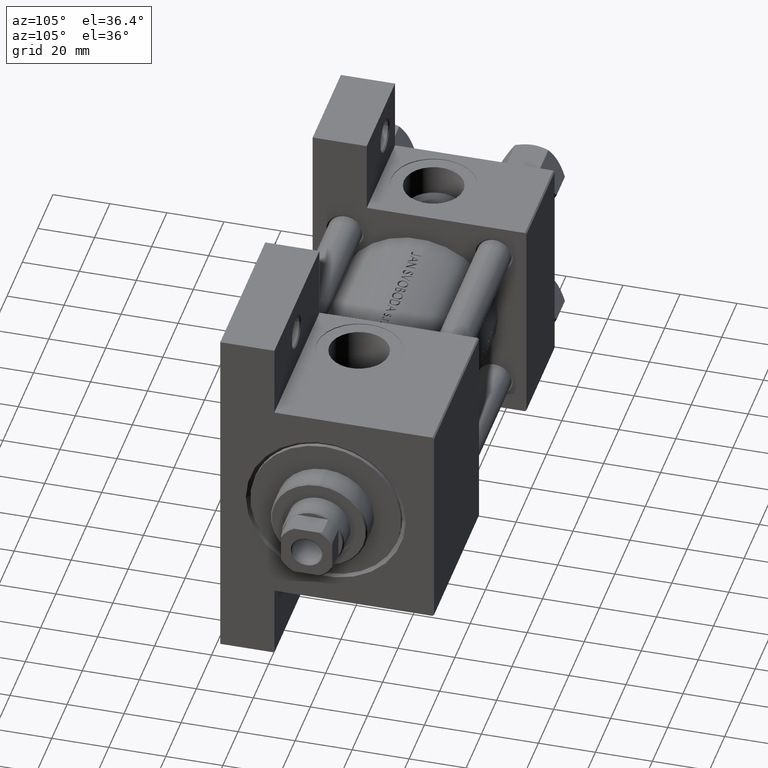
[diagram: clean part render]
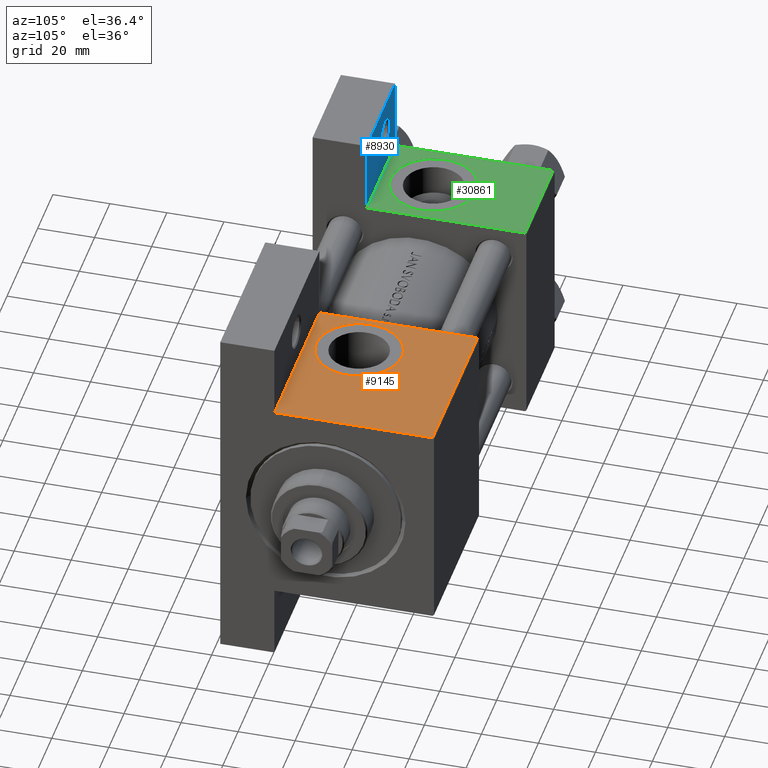
[diagram: same view with three faces highlighted in distinct colors, each labeled with its STEP entity id]
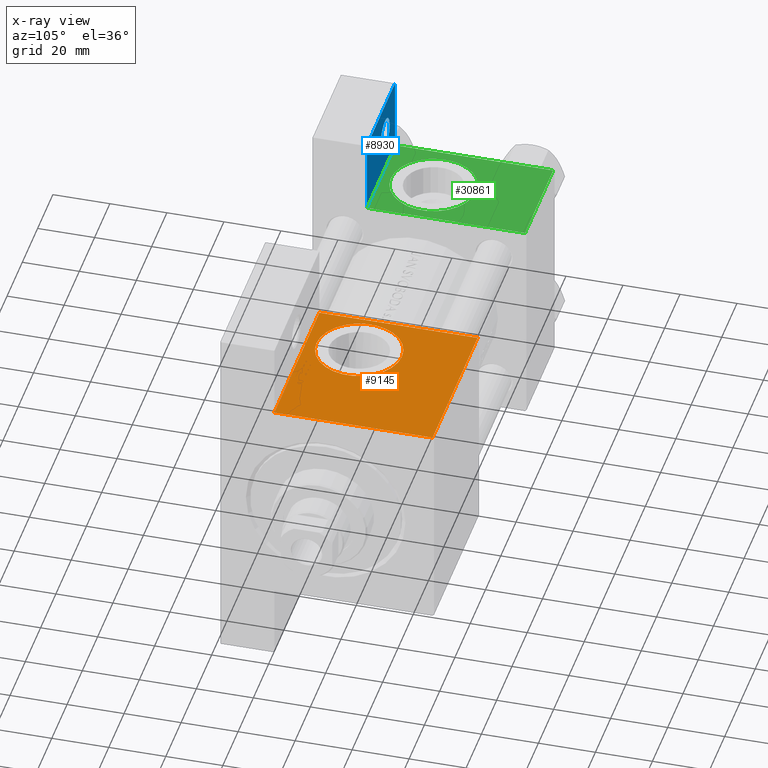
[diagram: x-ray of the same camera — body ghosted, the three highlighted faces saturated]
A machine part, auxiliary view with three faces highlighted in distinct colors.
The next image is the same camera in x-ray (body ghosted, the three faces saturated) — at least one of them is partly hidden behind the body in this view.
Their STEP definitions:

[orange] entity #9145 — the highlighted planar face has unit normal (0, -0, -1).
#79 = CARTESIAN_POINT ( 'NONE',  ( 99.00000000000000000, -37.50000000000000000, -18.50000000000000000 ) ) ;
#541 = VERTEX_POINT ( 'NONE', #28845 ) ;
#707 = EDGE_LOOP ( 'NONE', ( #40484, #48852, #17959, #38972 ) ) ;
#974 = DIRECTION ( 'NONE',  ( 0.000000000000000000, -9.251858538542972814E-17, -1.000000000000000000 ) ) ;
#1054 = FACE_BOUND ( 'NONE', #17347, .T. ) ;
#1600 = DIRECTION ( 'NONE',  ( 0.000000000000000000, 0.000000000000000000, -1.000000000000000000 ) ) ;
#5345 = CARTESIAN_POINT ( 'NONE',  ( 116.0000000000000000, -37.50000000000000000, 3.469446951953615767E-15 ) ) ;
#5912 = LINE ( 'NONE', #47530, #30388 ) ;
#6200 = VERTEX_POINT ( 'NONE', #22707 ) ;
#7792 = LINE ( 'NONE', #79, #48524 ) ;
#7863 = LINE ( 'NONE', #23551, #41427 ) ;
#8861 = VECTOR ( 'NONE', #974, 1000.000000000000000 ) ;
#9145 = ADVANCED_FACE ( 'NONE', ( #1054, #42425 ), #12272, .F. ) ;
#11149 = DIRECTION ( 'NONE',  ( 0.000000000000000000, -1.000000000000000000, -8.673617379884036705E-17 ) ) ;
#11611 = CARTESIAN_POINT ( 'NONE',  ( 158.0000000000000000, -37.50000000000000711, -18.50000000000000355 ) ) ;
#12272 = PLANE ( 'NONE',  #30792 ) ;
#12513 = DIRECTION ( 'NONE',  ( 0.000000000000000000, 9.251858538542972814E-17, 1.000000000000000000 ) ) ;
#13086 = ORIENTED_EDGE ( 'NONE', *, *, #46930, .F. ) ;
#13108 = VERTEX_POINT ( 'NONE', #46852 ) ;
#17029 = EDGE_CURVE ( 'NONE', #22029, #28580, #7792, .T. ) ;
#17347 = EDGE_LOOP ( 'NONE', ( #48691, #13086 ) ) ;
#17959 = ORIENTED_EDGE ( 'NONE', *, *, #18772, .T. ) ;
#18134 = CARTESIAN_POINT ( 'NONE',  ( 116.0000000000000000, -37.50000000000000000, 3.469446951953615767E-15 ) ) ;
#18772 = EDGE_CURVE ( 'NONE', #541, #22029, #7863, .T. ) ;
#19408 = CARTESIAN_POINT ( 'NONE',  ( 158.0000000000000000, -37.50000000000000000, 37.49999999999997868 ) ) ;
#19797 = DIRECTION ( 'NONE',  ( 0.000000000000000000, -9.251858538542972814E-17, -1.000000000000000000 ) ) ;
#22029 = VERTEX_POINT ( 'NONE', #23767 ) ;
#22707 = CARTESIAN_POINT ( 'NONE',  ( 116.0000000000000000, -37.50000000000000000, 15.00000000000001421 ) ) ;
#23551 = CARTESIAN_POINT ( 'NONE',  ( 99.00000000000000000, -37.50000000000000000, 37.49999999999997868 ) ) ;
#23767 = CARTESIAN_POINT ( 'NONE',  ( 99.00000000000000000, -37.50000000000000000, -18.50000000000000000 ) ) ;
#24665 = EDGE_CURVE ( 'NONE', #13108, #541, #5912, .T. ) ;
#26354 = VERTEX_POINT ( 'NONE', #39957 ) ;
#28580 = VERTEX_POINT ( 'NONE', #11611 ) ;
#28845 = CARTESIAN_POINT ( 'NONE',  ( 99.00000000000000000, -37.50000000000000000, 36.99999999999995026 ) ) ;
#30388 = VECTOR ( 'NONE', #39565, 1000.000000000000000 ) ;
#30792 = AXIS2_PLACEMENT_3D ( 'NONE', #35449, #46407, #12513 ) ;
#31127 = LINE ( 'NONE', #19408, #8861 ) ;
#33580 = DIRECTION ( 'NONE',  ( 0.000000000000000000, 0.000000000000000000, -1.000000000000000000 ) ) ;
#34599 = AXIS2_PLACEMENT_3D ( 'NONE', #18134, #11149, #33580 ) ;
#34901 = EDGE_CURVE ( 'NONE', #13108, #28580, #31127, .T. ) ;
#35449 = CARTESIAN_POINT ( 'NONE',  ( 158.0000000000000000, -37.50000000000000000, 37.49999999999997868 ) ) ;
#35751 = DIRECTION ( 'NONE',  ( 0.000000000000000000, -1.000000000000000000, -8.673617379884036705E-17 ) ) ;
#38531 = AXIS2_PLACEMENT_3D ( 'NONE', #5345, #35751, #1600 ) ;
#38972 = ORIENTED_EDGE ( 'NONE', *, *, #17029, .T. ) ;
#39565 = DIRECTION ( 'NONE',  ( -1.000000000000000000, 0.000000000000000000, 0.000000000000000000 ) ) ;
#39957 = CARTESIAN_POINT ( 'NONE',  ( 116.0000000000000000, -37.50000000000000000, -15.00000000000000888 ) ) ;
#40484 = ORIENTED_EDGE ( 'NONE', *, *, #34901, .F. ) ;
#41427 = VECTOR ( 'NONE', #19797, 1000.000000000000000 ) ;
#42425 = FACE_OUTER_BOUND ( 'NONE', #707, .T. ) ;
#44188 = CIRCLE ( 'NONE', #34599, 15.00000000000001243 ) ;
#44867 = EDGE_CURVE ( 'NONE', #26354, #6200, #46486, .T. ) ;
#46407 = DIRECTION ( 'NONE',  ( 0.000000000000000000, 1.000000000000000000, -9.251858538542972814E-17 ) ) ;
#46486 = CIRCLE ( 'NONE', #38531, 15.00000000000001243 ) ;
#46852 = CARTESIAN_POINT ( 'NONE',  ( 158.0000000000000000, -37.50000000000000000, 36.99999999999995026 ) ) ;
#46930 = EDGE_CURVE ( 'NONE', #6200, #26354, #44188, .T. ) ;
#47530 = CARTESIAN_POINT ( 'NONE',  ( 158.0000000000000000, -37.50000000000000000, 36.99999999999995026 ) ) ;
#48524 = VECTOR ( 'NONE', #48909, 1000.000000000000000 ) ;
#48691 = ORIENTED_EDGE ( 'NONE', *, *, #44867, .F. ) ;
#48852 = ORIENTED_EDGE ( 'NONE', *, *, #24665, .T. ) ;
#48909 = DIRECTION ( 'NONE',  ( 1.000000000000000000, -3.528251137579948571E-16, 0.000000000000000000 ) ) ;

[blue] entity #8930 — the highlighted planar face has unit normal (0, -1, 0).
#1303 = ORIENTED_EDGE ( 'NONE', *, *, #38567, .T. ) ;
#1433 = LINE ( 'NONE', #8669, #42911 ) ;
#1846 = VECTOR ( 'NONE', #25785, 1000.000000000000000 ) ;
#2085 = FACE_OUTER_BOUND ( 'NONE', #42355, .T. ) ;
#2112 = AXIS2_PLACEMENT_3D ( 'NONE', #21274, #5583, #25261 ) ;
#3110 = VERTEX_POINT ( 'NONE', #46531 ) ;
#4524 = ORIENTED_EDGE ( 'NONE', *, *, #20206, .T. ) ;
#4708 = ORIENTED_EDGE ( 'NONE', *, *, #32098, .T. ) ;
#5275 = CARTESIAN_POINT ( 'NONE',  ( 12.99999999999999822, -51.00000000000001421, -18.50000000000000000 ) ) ;
#5526 = CARTESIAN_POINT ( 'NONE',  ( 12.99999999999999822, -51.00000000000001421, -18.50000000000000000 ) ) ;
#5583 = DIRECTION ( 'NONE',  ( 0.000000000000000000, 0.000000000000000000, -1.000000000000000000 ) ) ;
#5773 = DIRECTION ( 'NONE',  ( -1.000000000000000000, 0.000000000000000000, 0.000000000000000000 ) ) ;
#6940 = CARTESIAN_POINT ( 'NONE',  ( 7.000499999999975742, -51.00000000000001421, -18.50000000000000000 ) ) ;
#7584 = LINE ( 'NONE', #34908, #21601 ) ;
#8368 = EDGE_CURVE ( 'NONE', #24824, #9688, #20390, .T. ) ;
#8669 = CARTESIAN_POINT ( 'NONE',  ( 3.977209754999747208E-16, -63.50000000000000000, -18.50000000000000355 ) ) ;
#8930 = ADVANCED_FACE ( 'NONE', ( #21512, #2085 ), #13066, .F. ) ;
#9688 = VERTEX_POINT ( 'NONE', #6940 ) ;
#12241 = DIRECTION ( 'NONE',  ( -1.000000000000000000, 0.000000000000000000, 0.000000000000000000 ) ) ;
#13066 = PLANE ( 'NONE',  #2112 ) ;
#13151 = DIRECTION ( 'NONE',  ( 1.000000000000000000, 0.000000000000000000, 0.000000000000000000 ) ) ;
#13301 = CARTESIAN_POINT ( 'NONE',  ( 37.00000000000000000, -37.50000000000000000, -18.50000000000000355 ) ) ;
#13487 = VERTEX_POINT ( 'NONE', #17877 ) ;
#14999 = EDGE_CURVE ( 'NONE', #13487, #3110, #1433, .T. ) ;
#15196 = DIRECTION ( 'NONE',  ( -0.000000000000000000, 1.000000000000000000, 0.000000000000000000 ) ) ;
#16283 = VERTEX_POINT ( 'NONE', #43439 ) ;
#17877 = CARTESIAN_POINT ( 'NONE',  ( 3.977209754999747208E-16, -63.50000000000000000, -18.50000000000000355 ) ) ;
#18686 = CARTESIAN_POINT ( 'NONE',  ( 37.00000000000000000, -63.49999999999998579, -18.50000000000000355 ) ) ;
#20206 = EDGE_CURVE ( 'NONE', #38914, #16283, #7584, .T. ) ;
#20390 = CIRCLE ( 'NONE', #22790, 5.999500000000022482 ) ;
#20973 = DIRECTION ( 'NONE',  ( 0.000000000000000000, 0.000000000000000000, -1.000000000000000000 ) ) ;
#21274 = CARTESIAN_POINT ( 'NONE',  ( 0.000000000000000000, 0.000000000000000000, -18.50000000000000000 ) ) ;
#21512 = FACE_BOUND ( 'NONE', #44623, .T. ) ;
#21601 = VECTOR ( 'NONE', #12241, 1000.000000000000000 ) ;
#22790 = AXIS2_PLACEMENT_3D ( 'NONE', #5275, #28194, #5773 ) ;
#24642 = ORIENTED_EDGE ( 'NONE', *, *, #43417, .T. ) ;
#24824 = VERTEX_POINT ( 'NONE', #46791 ) ;
#24984 = ORIENTED_EDGE ( 'NONE', *, *, #14999, .T. ) ;
#25261 = DIRECTION ( 'NONE',  ( -1.000000000000000000, 0.000000000000000000, -0.000000000000000000 ) ) ;
#25785 = DIRECTION ( 'NONE',  ( 4.278042683914906889E-17, -1.000000000000000000, 0.000000000000000000 ) ) ;
#26610 = AXIS2_PLACEMENT_3D ( 'NONE', #5526, #20973, #27943 ) ;
#27943 = DIRECTION ( 'NONE',  ( -1.000000000000000000, 0.000000000000000000, 0.000000000000000000 ) ) ;
#28194 = DIRECTION ( 'NONE',  ( 0.000000000000000000, 0.000000000000000000, -1.000000000000000000 ) ) ;
#29775 = LINE ( 'NONE', #41239, #1846 ) ;
#29868 = ORIENTED_EDGE ( 'NONE', *, *, #8368, .T. ) ;
#31268 = VECTOR ( 'NONE', #15196, 1000.000000000000000 ) ;
#32098 = EDGE_CURVE ( 'NONE', #9688, #24824, #47321, .T. ) ;
#34908 = CARTESIAN_POINT ( 'NONE',  ( -7.145701223179000102E-16, -37.50000000000001421, -18.49999999999999645 ) ) ;
#38567 = EDGE_CURVE ( 'NONE', #3110, #38914, #41362, .T. ) ;
#38914 = VERTEX_POINT ( 'NONE', #13301 ) ;
#41239 = CARTESIAN_POINT ( 'NONE',  ( 3.977209754999744250E-16, -63.49999999999998579, -18.50000000000000355 ) ) ;
#41362 = LINE ( 'NONE', #18686, #31268 ) ;
#42355 = EDGE_LOOP ( 'NONE', ( #1303, #4524, #24642, #24984 ) ) ;
#42911 = VECTOR ( 'NONE', #13151, 1000.000000000000000 ) ;
#43417 = EDGE_CURVE ( 'NONE', #16283, #13487, #29775, .T. ) ;
#43439 = CARTESIAN_POINT ( 'NONE',  ( -7.145701223179004046E-16, -37.50000000000000711, -18.50000000000000355 ) ) ;
#44623 = EDGE_LOOP ( 'NONE', ( #29868, #4708 ) ) ;
#46531 = CARTESIAN_POINT ( 'NONE',  ( 37.00000000000000000, -63.50000000000000000, -18.50000000000000355 ) ) ;
#46791 = CARTESIAN_POINT ( 'NONE',  ( 18.99950000000001893, -51.00000000000001421, -18.50000000000000000 ) ) ;
#47321 = CIRCLE ( 'NONE', #26610, 5.999500000000022482 ) ;

[green] entity #30861 — the highlighted planar face has unit normal (0, 0, -1).
#678 = ORIENTED_EDGE ( 'NONE', *, *, #38681, .T. ) ;
#3277 = VECTOR ( 'NONE', #39370, 1000.000000000000000 ) ;
#4468 = ORIENTED_EDGE ( 'NONE', *, *, #28500, .T. ) ;
#5883 = AXIS2_PLACEMENT_3D ( 'NONE', #30527, #23282, #26539 ) ;
#6584 = VECTOR ( 'NONE', #36588, 1000.000000000000000 ) ;
#7564 = DIRECTION ( 'NONE',  ( 0.000000000000000000, 0.000000000000000000, -1.000000000000000000 ) ) ;
#7584 = LINE ( 'NONE', #34908, #21601 ) ;
#8080 = VERTEX_POINT ( 'NONE', #29400 ) ;
#8089 = PLANE ( 'NONE',  #5883 ) ;
#8890 = DIRECTION ( 'NONE',  ( 0.000000000000000000, 0.000000000000000000, -1.000000000000000000 ) ) ;
#9558 = CIRCLE ( 'NONE', #36627, 15.00000000000000178 ) ;
#9749 = ORIENTED_EDGE ( 'NONE', *, *, #14144, .F. ) ;
#9931 = LINE ( 'NONE', #17165, #6584 ) ;
#12241 = DIRECTION ( 'NONE',  ( -1.000000000000000000, 0.000000000000000000, 0.000000000000000000 ) ) ;
#13301 = CARTESIAN_POINT ( 'NONE',  ( 37.00000000000000000, -37.50000000000000000, -18.50000000000000355 ) ) ;
#13767 = VERTEX_POINT ( 'NONE', #23303 ) ;
#14144 = EDGE_CURVE ( 'NONE', #23844, #8080, #16600, .T. ) ;
#15009 = ORIENTED_EDGE ( 'NONE', *, *, #20206, .F. ) ;
#16054 = FACE_BOUND ( 'NONE', #31961, .T. ) ;
#16283 = VERTEX_POINT ( 'NONE', #43439 ) ;
#16600 = CIRCLE ( 'NONE', #39697, 15.00000000000000178 ) ;
#16716 = ORIENTED_EDGE ( 'NONE', *, *, #23921, .F. ) ;
#16843 = EDGE_CURVE ( 'NONE', #8080, #23844, #9558, .T. ) ;
#16928 = LINE ( 'NONE', #32135, #3277 ) ;
#17165 = CARTESIAN_POINT ( 'NONE',  ( 0.000000000000000000, -37.50000000000000711, 37.49999999999999289 ) ) ;
#17710 = ORIENTED_EDGE ( 'NONE', *, *, #16843, .F. ) ;
#18283 = CARTESIAN_POINT ( 'NONE',  ( 18.50000000000000000, -37.50000000000000711, -3.469446951953614978E-15 ) ) ;
#20206 = EDGE_CURVE ( 'NONE', #38914, #16283, #7584, .T. ) ;
#21601 = VECTOR ( 'NONE', #12241, 1000.000000000000000 ) ;
#23282 = DIRECTION ( 'NONE',  ( -0.000000000000000000, 1.000000000000000000, 9.251858538542971581E-17 ) ) ;
#23303 = CARTESIAN_POINT ( 'NONE',  ( 37.00000000000000000, -37.50000000000000711, 36.99999999999999289 ) ) ;
#23844 = VERTEX_POINT ( 'NONE', #43595 ) ;
#23921 = EDGE_CURVE ( 'NONE', #13767, #38914, #16928, .T. ) ;
#26539 = DIRECTION ( 'NONE',  ( 0.000000000000000000, -9.251858538542971581E-17, 1.000000000000000000 ) ) ;
#28309 = DIRECTION ( 'NONE',  ( 0.000000000000000000, -1.000000000000000000, -8.673617379884036705E-17 ) ) ;
#28500 = EDGE_CURVE ( 'NONE', #13767, #29258, #37791, .T. ) ;
#29258 = VERTEX_POINT ( 'NONE', #42068 ) ;
#29400 = CARTESIAN_POINT ( 'NONE',  ( 18.50000000000000355, -37.50000000000000711, 14.99999999999999822 ) ) ;
#30527 = CARTESIAN_POINT ( 'NONE',  ( 37.00000000000000000, -37.50000000000000711, 37.49999999999999289 ) ) ;
#30861 = ADVANCED_FACE ( 'NONE', ( #16054, #31001 ), #8089, .F. ) ;
#31001 = FACE_OUTER_BOUND ( 'NONE', #49263, .T. ) ;
#31961 = EDGE_LOOP ( 'NONE', ( #9749, #17710 ) ) ;
#32135 = CARTESIAN_POINT ( 'NONE',  ( 37.00000000000000000, -37.50000000000000711, 37.49999999999999289 ) ) ;
#33484 = DIRECTION ( 'NONE',  ( 0.000000000000000000, -1.000000000000000000, -8.673617379884036705E-17 ) ) ;
#34280 = DIRECTION ( 'NONE',  ( -1.000000000000000000, 0.000000000000000000, 0.000000000000000000 ) ) ;
#34908 = CARTESIAN_POINT ( 'NONE',  ( -7.145701223179000102E-16, -37.50000000000001421, -18.49999999999999645 ) ) ;
#36588 = DIRECTION ( 'NONE',  ( 0.000000000000000000, 9.251858538542971581E-17, -1.000000000000000000 ) ) ;
#36627 = AXIS2_PLACEMENT_3D ( 'NONE', #43023, #28309, #8890 ) ;
#37791 = LINE ( 'NONE', #42008, #40039 ) ;
#38681 = EDGE_CURVE ( 'NONE', #29258, #16283, #9931, .T. ) ;
#38914 = VERTEX_POINT ( 'NONE', #13301 ) ;
#39370 = DIRECTION ( 'NONE',  ( 0.000000000000000000, 9.251858538542971581E-17, -1.000000000000000000 ) ) ;
#39697 = AXIS2_PLACEMENT_3D ( 'NONE', #18283, #33484, #7564 ) ;
#40039 = VECTOR ( 'NONE', #34280, 1000.000000000000000 ) ;
#42008 = CARTESIAN_POINT ( 'NONE',  ( 37.00000000000000000, -37.50000000000000711, 36.99999999999999289 ) ) ;
#42068 = CARTESIAN_POINT ( 'NONE',  ( 0.000000000000000000, -37.50000000000000711, 36.99999999999999289 ) ) ;
#43023 = CARTESIAN_POINT ( 'NONE',  ( 18.50000000000000000, -37.50000000000000711, -3.469446951953614978E-15 ) ) ;
#43439 = CARTESIAN_POINT ( 'NONE',  ( -7.145701223179004046E-16, -37.50000000000000711, -18.50000000000000355 ) ) ;
#43595 = CARTESIAN_POINT ( 'NONE',  ( 18.50000000000000000, -37.50000000000000711, -15.00000000000000533 ) ) ;
#49263 = EDGE_LOOP ( 'NONE', ( #15009, #16716, #4468, #678 ) ) ;